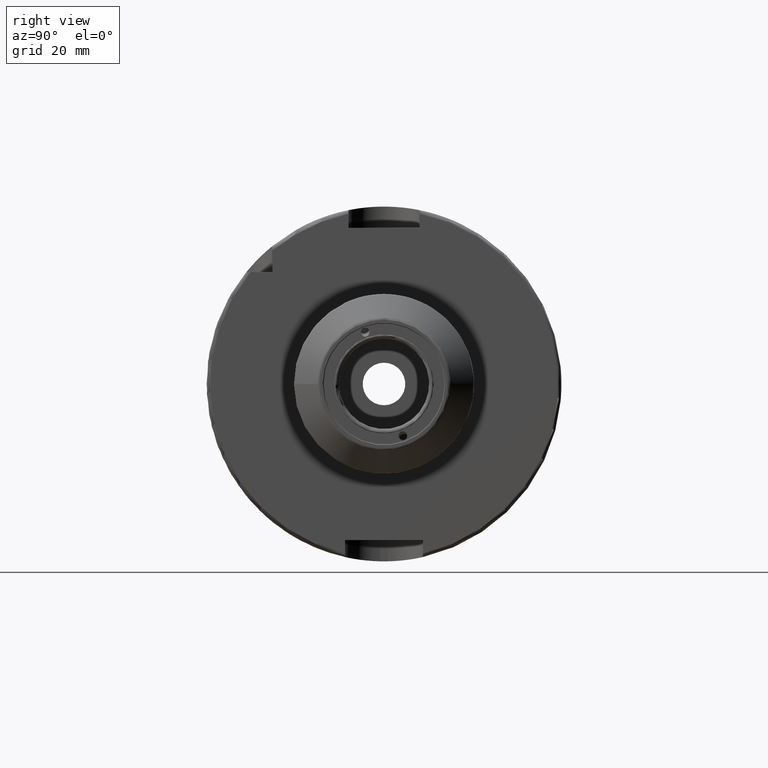
[diagram: clean part render]
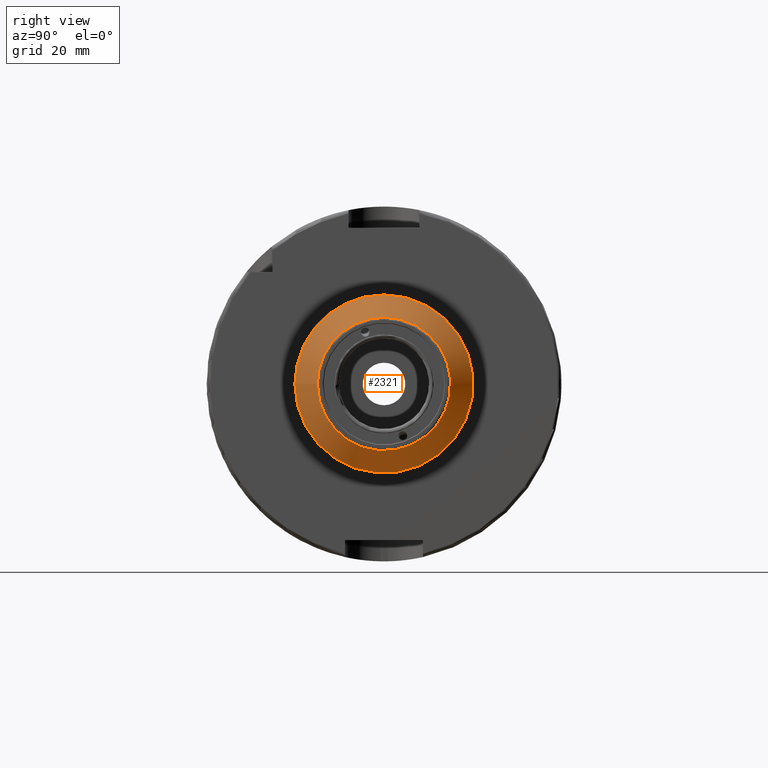
[diagram: same view with one face highlighted and labeled with its STEP entity id]
A machine part, right view. The second image highlights one B-rep face of the part: STEP entity #2321.
In plain terms, the highlighted conical surface has half-angle 45 deg.
Its self-contained STEP definition (entity closure, byte-faithful):
#63=CONICAL_SURFACE('',#2504,21.95,0.785398163397448);
#126=CIRCLE('',#2502,18.7928932188135);
#127=CIRCLE('',#2503,18.7928932188135);
#128=CIRCLE('',#2505,25.1071067811865);
#129=CIRCLE('',#2506,25.1071067811865);
#311=FACE_OUTER_BOUND('',#458,.T.);
#458=EDGE_LOOP('',(#1642,#1643,#1644,#1645,#1646,#1647));
#682=LINE('',#3912,#802);
#802=VECTOR('',#2857,21.95);
#959=VERTEX_POINT('',#3905);
#960=VERTEX_POINT('',#3907);
#961=VERTEX_POINT('',#3911);
#962=VERTEX_POINT('',#3913);
#1220=EDGE_CURVE('',#959,#960,#126,.T.);
#1221=EDGE_CURVE('',#960,#959,#127,.T.);
#1222=EDGE_CURVE('',#960,#961,#682,.T.);
#1223=EDGE_CURVE('',#962,#961,#128,.T.);
#1224=EDGE_CURVE('',#961,#962,#129,.T.);
#1642=ORIENTED_EDGE('',*,*,#1221,.F.);
#1643=ORIENTED_EDGE('',*,*,#1222,.T.);
#1644=ORIENTED_EDGE('',*,*,#1223,.F.);
#1645=ORIENTED_EDGE('',*,*,#1224,.F.);
#1646=ORIENTED_EDGE('',*,*,#1222,.F.);
#1647=ORIENTED_EDGE('',*,*,#1220,.F.);
#2321=ADVANCED_FACE('',(#311),#63,.T.);
#2502=AXIS2_PLACEMENT_3D('',#3908,#2851,#2852);
#2503=AXIS2_PLACEMENT_3D('',#3909,#2853,#2854);
#2504=AXIS2_PLACEMENT_3D('',#3910,#2855,#2856);
#2505=AXIS2_PLACEMENT_3D('',#3914,#2858,#2859);
#2506=AXIS2_PLACEMENT_3D('',#3915,#2860,#2861);
#2851=DIRECTION('center_axis',(1.,0.,0.));
#2852=DIRECTION('ref_axis',(0.,-1.,3.06161699786838E-17));
#2853=DIRECTION('center_axis',(1.,0.,0.));
#2854=DIRECTION('ref_axis',(0.,-1.,3.06161699786838E-17));
#2855=DIRECTION('center_axis',(-1.,0.,0.));
#2856=DIRECTION('ref_axis',(0.,1.,0.));
#2857=DIRECTION('',(-0.707106781186548,-0.707106781186547,-8.65956056235493E-17));
#2858=DIRECTION('center_axis',(-1.,0.,0.));
#2859=DIRECTION('ref_axis',(0.,-1.,3.06161699786838E-17));
#2860=DIRECTION('center_axis',(-1.,0.,0.));
#2861=DIRECTION('ref_axis',(0.,-1.,3.06161699786838E-17));
#3905=CARTESIAN_POINT('',(99.7071067811866,-2.30146565271379E-15,18.7928932188134));
#3907=CARTESIAN_POINT('',(99.7071067811866,-18.7928932188134,-2.30146565271379E-15));
#3908=CARTESIAN_POINT('Origin',(99.7071067811866,0.,-2.87683206589224E-15));
#3909=CARTESIAN_POINT('Origin',(99.7071067811866,0.,-2.87683206589224E-15));
#3910=CARTESIAN_POINT('Origin',(96.55,0.,0.));
#3911=CARTESIAN_POINT('',(93.3928932188135,-25.1071067811865,-3.07473379554309E-15));
#3912=CARTESIAN_POINT('',(96.55,-21.95,-2.68809972412844E-15));
#3913=CARTESIAN_POINT('',(93.3928932188135,-3.07473379554309E-15,25.1071067811865));
#3914=CARTESIAN_POINT('Origin',(93.3928932188135,0.,-3.84341724442886E-15));
#3915=CARTESIAN_POINT('Origin',(93.3928932188135,0.,-3.84341724442886E-15));